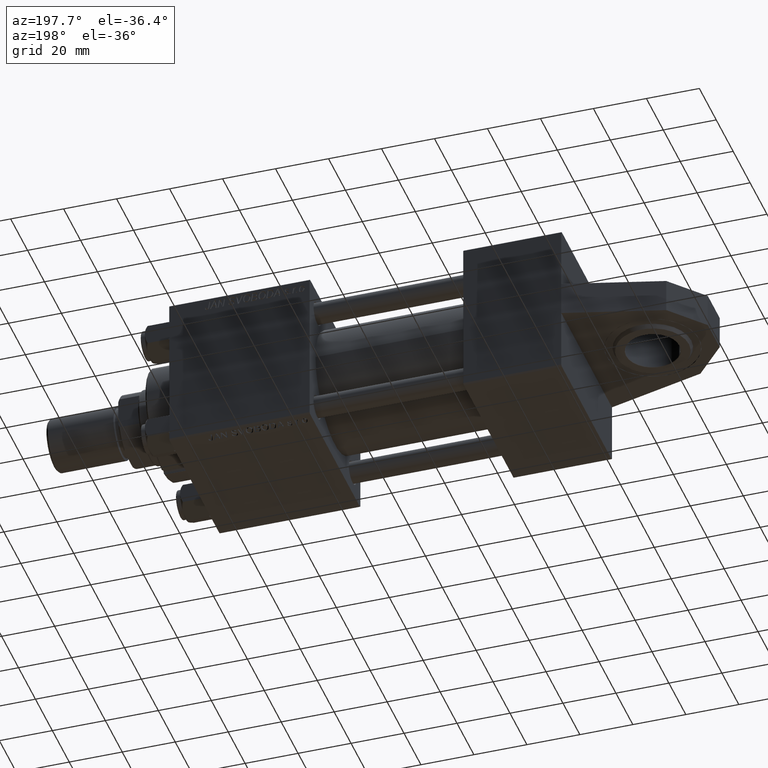
[diagram: clean part render]
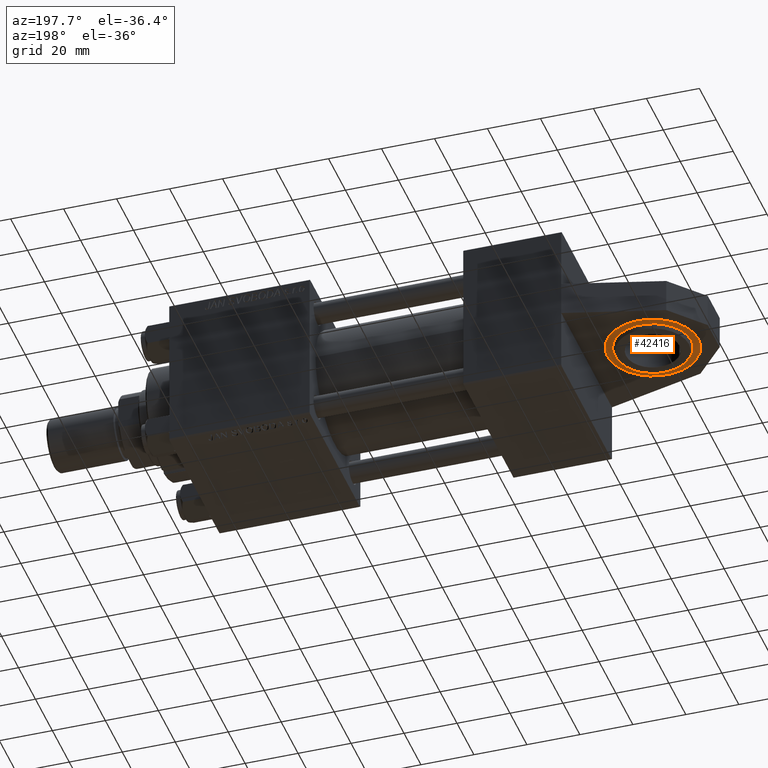
[diagram: same view with one face highlighted and labeled with its STEP entity id]
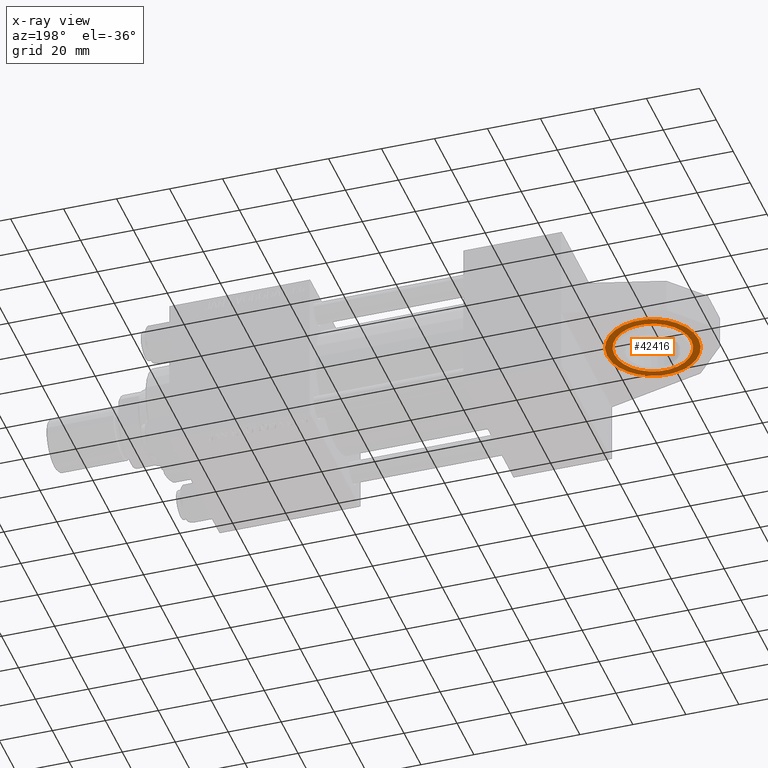
[diagram: x-ray of the same camera — body ghosted, the highlighted face saturated]
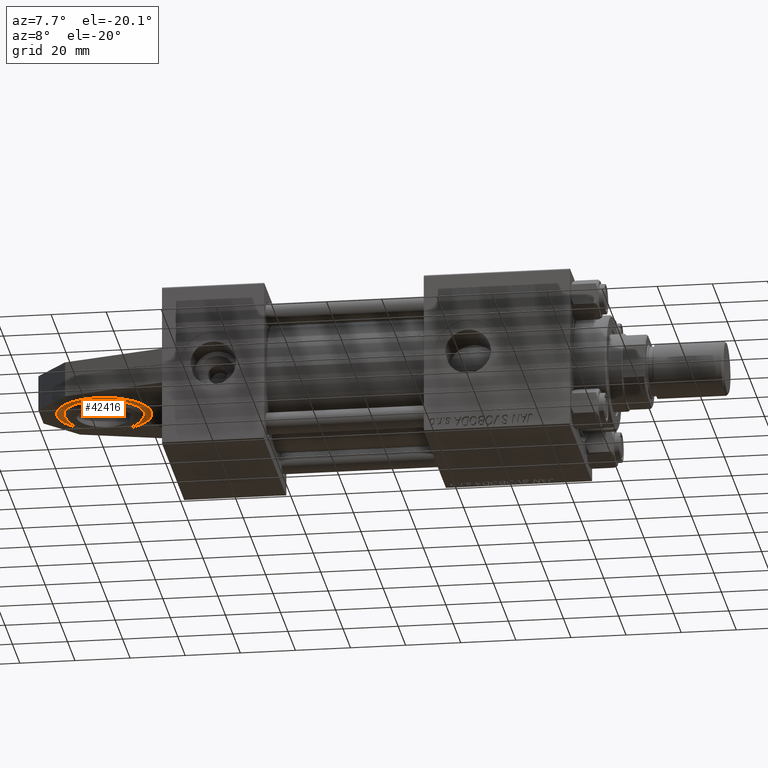
[diagram: same view with one face highlighted and labeled with its STEP entity id]
A machine part, auxiliary view. The second image highlights one B-rep face of the part: STEP entity #42416.
The next image is the same camera in x-ray: the body ghosted, the highlighted face saturated — about 0% of this face is hidden behind the body in this view.
A second angle (auxiliary view) of the same face is appended — the face is thin or edge-on in the first view.
In plain terms, the highlighted planar face has unit normal (0, 0, 1).
Its self-contained STEP definition (entity closure, byte-faithful):
#496 = FACE_OUTER_BOUND ( 'NONE', #49089, .T. ) ;
#1446 = CARTESIAN_POINT ( 'NONE',  ( 0.000000000000000000, 0.000000000000000000, -6.499999999999997335 ) ) ;
#1492 = DIRECTION ( 'NONE',  ( 1.000000000000000000, 0.000000000000000000, 0.000000000000000000 ) ) ;
#2459 = DIRECTION ( 'NONE',  ( 1.000000000000000000, 0.000000000000000000, 0.000000000000000000 ) ) ;
#2974 = DIRECTION ( 'NONE',  ( 0.000000000000000000, 0.000000000000000000, -1.000000000000000000 ) ) ;
#3339 = CARTESIAN_POINT ( 'NONE',  ( 17.19999999999999929, 0.000000000000000000, -6.499999999999997335 ) ) ;
#4436 = ORIENTED_EDGE ( 'NONE', *, *, #9638, .T. ) ;
#4464 = CARTESIAN_POINT ( 'NONE',  ( 14.49999999999999822, 0.000000000000000000, -6.499999999999997335 ) ) ;
#4716 = CIRCLE ( 'NONE', #11278, 14.49999999999999822 ) ;
#5384 = EDGE_LOOP ( 'NONE', ( #17304, #28303 ) ) ;
#6808 = ORIENTED_EDGE ( 'NONE', *, *, #42719, .T. ) ;
#8167 = CARTESIAN_POINT ( 'NONE',  ( -17.19999999999999929, 2.124762196520657818E-15, -6.499999999999997335 ) ) ;
#9638 = EDGE_CURVE ( 'NONE', #13004, #23126, #10754, .T. ) ;
#9912 = DIRECTION ( 'NONE',  ( 1.000000000000000000, 0.000000000000000000, 0.000000000000000000 ) ) ;
#10754 = CIRCLE ( 'NONE', #15673, 17.19999999999999929 ) ;
#11278 = AXIS2_PLACEMENT_3D ( 'NONE', #17297, #40905, #37055 ) ;
#12804 = PLANE ( 'NONE',  #34977 ) ;
#13004 = VERTEX_POINT ( 'NONE', #8167 ) ;
#15673 = AXIS2_PLACEMENT_3D ( 'NONE', #22751, #2974, #2459 ) ;
#17004 = AXIS2_PLACEMENT_3D ( 'NONE', #40704, #41221, #33753 ) ;
#17297 = CARTESIAN_POINT ( 'NONE',  ( 0.000000000000000000, 0.000000000000000000, -6.499999999999997335 ) ) ;
#17304 = ORIENTED_EDGE ( 'NONE', *, *, #43950, .T. ) ;
#22751 = CARTESIAN_POINT ( 'NONE',  ( 0.000000000000000000, 0.000000000000000000, -6.499999999999997335 ) ) ;
#23126 = VERTEX_POINT ( 'NONE', #3339 ) ;
#24370 = FACE_BOUND ( 'NONE', #5384, .T. ) ;
#27666 = CIRCLE ( 'NONE', #17004, 17.19999999999999929 ) ;
#28303 = ORIENTED_EDGE ( 'NONE', *, *, #31435, .T. ) ;
#31435 = EDGE_CURVE ( 'NONE', #50666, #33965, #38038, .T. ) ;
#33753 = DIRECTION ( 'NONE',  ( 1.000000000000000000, 0.000000000000000000, 0.000000000000000000 ) ) ;
#33764 = CARTESIAN_POINT ( 'NONE',  ( -14.49999999999999822, 1.775737858763662015E-15, -6.499999999999997335 ) ) ;
#33965 = VERTEX_POINT ( 'NONE', #4464 ) ;
#34977 = AXIS2_PLACEMENT_3D ( 'NONE', #36668, #39766, #1492 ) ;
#36668 = CARTESIAN_POINT ( 'NONE',  ( 0.000000000000000000, 17.50000000000000000, -6.499999999999997335 ) ) ;
#37055 = DIRECTION ( 'NONE',  ( 1.000000000000000000, 0.000000000000000000, 0.000000000000000000 ) ) ;
#38038 = CIRCLE ( 'NONE', #43766, 14.49999999999999822 ) ;
#39766 = DIRECTION ( 'NONE',  ( 0.000000000000000000, -0.000000000000000000, 1.000000000000000000 ) ) ;
#40704 = CARTESIAN_POINT ( 'NONE',  ( 0.000000000000000000, 0.000000000000000000, -6.499999999999997335 ) ) ;
#40905 = DIRECTION ( 'NONE',  ( -0.000000000000000000, -0.000000000000000000, 1.000000000000000000 ) ) ;
#41221 = DIRECTION ( 'NONE',  ( 0.000000000000000000, 0.000000000000000000, -1.000000000000000000 ) ) ;
#42416 = ADVANCED_FACE ( 'NONE', ( #496, #24370 ), #12804, .F. ) ;
#42719 = EDGE_CURVE ( 'NONE', #23126, #13004, #27666, .T. ) ;
#43766 = AXIS2_PLACEMENT_3D ( 'NONE', #1446, #49454, #9912 ) ;
#43950 = EDGE_CURVE ( 'NONE', #33965, #50666, #4716, .T. ) ;
#49089 = EDGE_LOOP ( 'NONE', ( #6808, #4436 ) ) ;
#49454 = DIRECTION ( 'NONE',  ( -0.000000000000000000, -0.000000000000000000, 1.000000000000000000 ) ) ;
#50666 = VERTEX_POINT ( 'NONE', #33764 ) ;